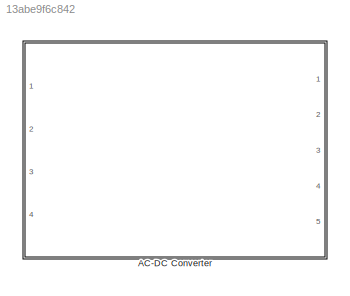
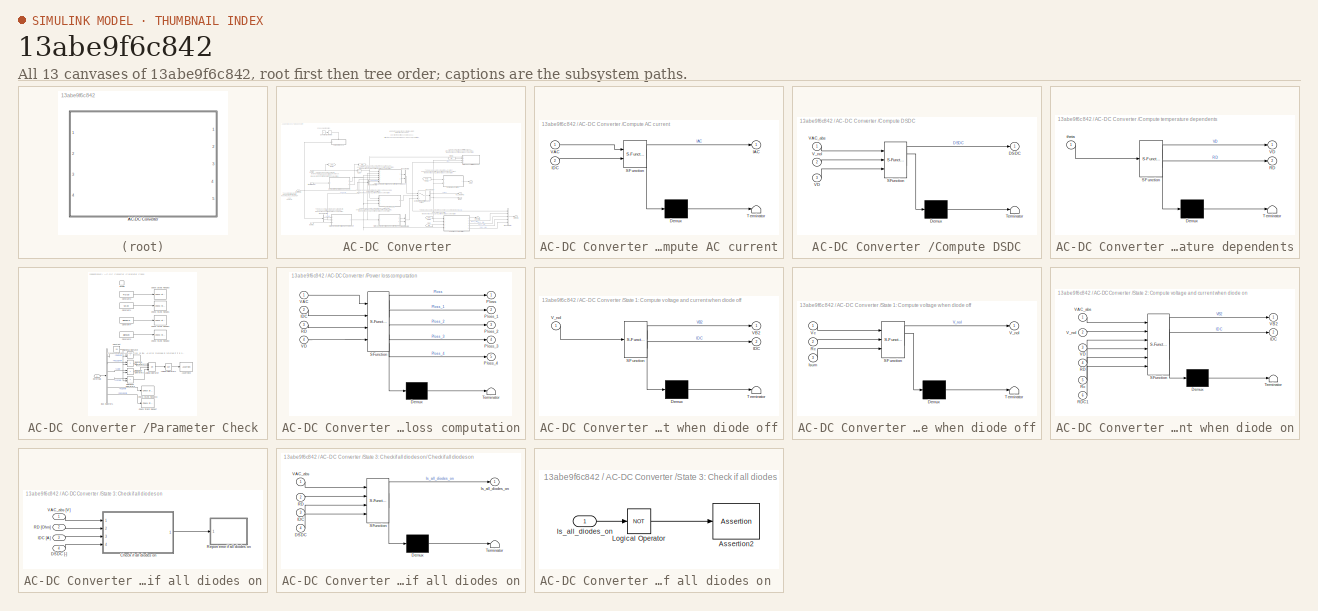
[diagram: thumbnail index - all 13 canvases of the model, root first then tree order]
MODEL slx_13abe9f6c842
KIND library
CONFIG AbsTol = auto
CONFIG FixedStep = auto
CONFIG MaxStep = auto
CONFIG MinStep = auto
CONFIG RelTol = 1e-3
CONFIG SampleTimeConstraint = Unconstrained
CONFIG Solver = ode45
CONFIG SolverMode = Auto
CONFIG SolverName = ode45
CONFIG StartTime = 0.0
CONFIG StopTime = 10.0
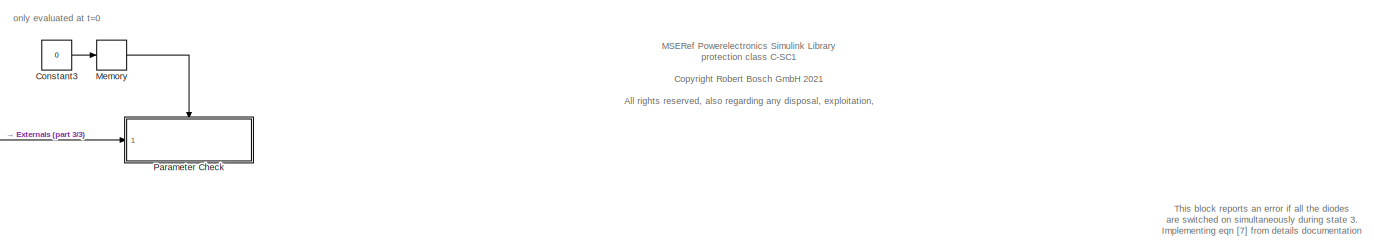
[diagram: AC-DC Converter  - part 1/3, top center region]
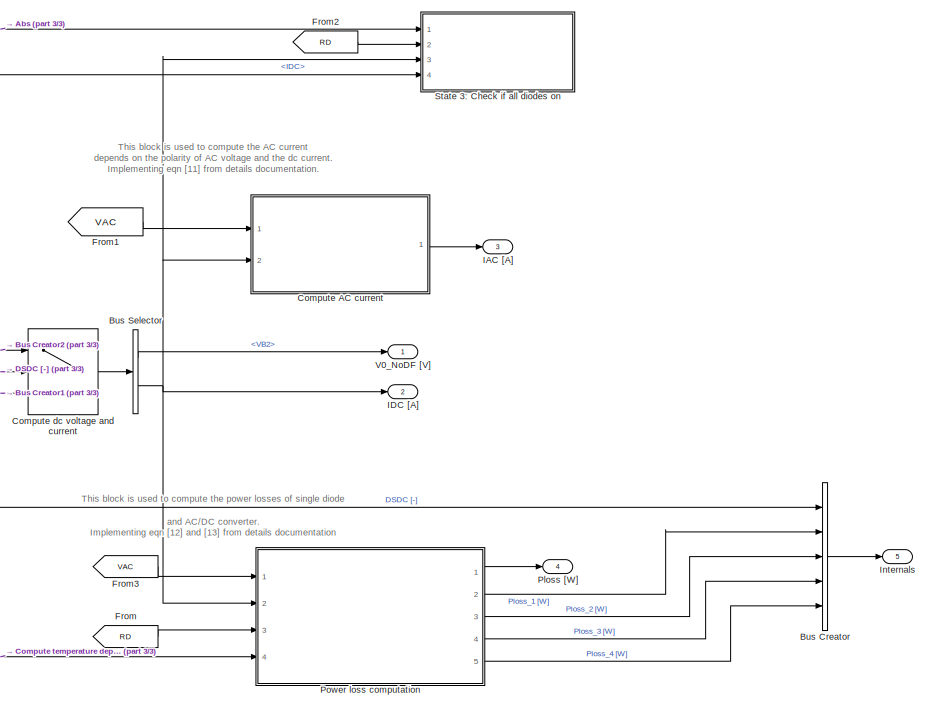
[diagram: AC-DC Converter  - part 2/3, middle right region]
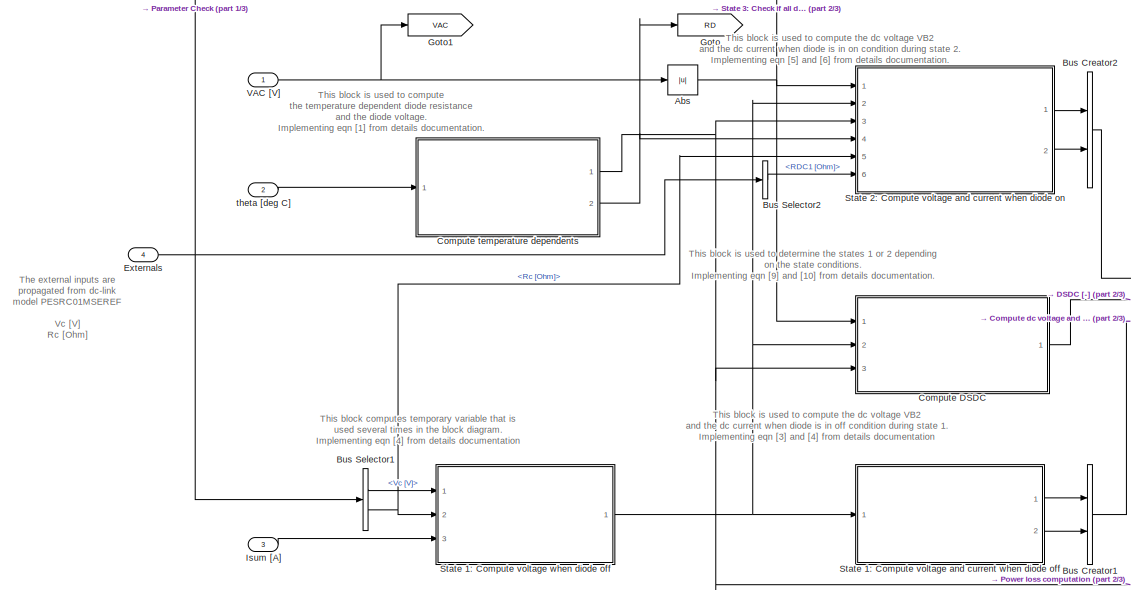
[diagram: AC-DC Converter  - part 3/3, middle left region]
BLOCK [SubSystem] AC-DC Converter 
  AttributesFormatString = <%<Tag>>
  Ports = [4, 5]
  RequestExecContextInheritance = off
  Tag = PEACDC01MSEREF
BLOCK [Abs] AC-DC Converter /Abs
  SaturateOnIntegerOverflow = off
BLOCK [BusCreator] AC-DC Converter /Bus Creator
  DisplayOption = bar
  Inputs = 5
  Ports = [5, 1]
BLOCK [BusCreator] AC-DC Converter /Bus Creator1
  DisplayOption = bar
  Inputs = 2
  Ports = [2, 1]
BLOCK [BusCreator] AC-DC Converter /Bus Creator2
  DisplayOption = bar
  Inputs = 2
  Ports = [2, 1]
BLOCK [BusSelector] AC-DC Converter /Bus Selector
  OutputSignals = VB2,IDC
  Ports = [1, 2]
BLOCK [BusSelector] AC-DC Converter /Bus Selector1
  OutputSignals = Vc [V],Rc [Ohm]
  Ports = [1, 2]
BLOCK [BusSelector] AC-DC Converter /Bus Selector2
  OutputSignals = RDC1 [Ohm]
  Ports = [1, 1]
BLOCK [SubSystem] AC-DC Converter /Compute AC current
  ErrorFcn = Stateflow.Translate.translate
  PermitHierarchicalResolution = ExplicitOnly
  Ports = [2, 1]
  RequestExecContextInheritance = off
  SFBlockType = MATLAB Function
  TreatAsAtomicUnit = on
BLOCK [Demux] AC-DC Converter /Compute AC current/ Demux 
  Outputs = 1
  Ports = [1, 1]
BLOCK [S-Function] AC-DC Converter /Compute AC current/ SFunction 
  EnableBusSupport = off
  FunctionName = sf_sfun
  PortCounts = [2 2]
  Ports = [2, 2]
  Tag = Stateflow S-Function PEACDC01MSEREF 1
BLOCK [Terminator] AC-DC Converter /Compute AC current/ Terminator 
BLOCK [Outport] AC-DC Converter /Compute AC current/IAC
  IconDisplay = Port number
BLOCK [Inport] AC-DC Converter /Compute AC current/IDC
  IconDisplay = Port number
  Port = 2
BLOCK [Inport] AC-DC Converter /Compute AC current/VAC
  IconDisplay = Port number
BLOCK [SubSystem] AC-DC Converter /Compute DSDC
  ErrorFcn = Stateflow.Translate.translate
  PermitHierarchicalResolution = ExplicitOnly
  Ports = [3, 1]
  RequestExecContextInheritance = off
  SFBlockType = MATLAB Function
  TreatAsAtomicUnit = on
BLOCK [Demux] AC-DC Converter /Compute DSDC/ Demux 
  Outputs = 1
  Ports = [1, 1]
BLOCK [S-Function] AC-DC Converter /Compute DSDC/ SFunction 
  EnableBusSupport = off
  FunctionName = sf_sfun
  PortCounts = [3 2]
  Ports = [3, 2]
  Tag = Stateflow S-Function PEACDC01MSEREF 2
BLOCK [Terminator] AC-DC Converter /Compute DSDC/ Terminator 
BLOCK [Outport] AC-DC Converter /Compute DSDC/DSDC
  IconDisplay = Port number
BLOCK [Inport] AC-DC Converter /Compute DSDC/VAC_abs
  IconDisplay = Port number
BLOCK [Inport] AC-DC Converter /Compute DSDC/VD
  IconDisplay = Port number
  Port = 3
BLOCK [Inport] AC-DC Converter /Compute DSDC/V_noI
  IconDisplay = Port number
  Port = 2
BLOCK [Switch] AC-DC Converter /Compute dc voltage and current
  Criteria = u2 > Threshold
  InputSameDT = off
  SaturateOnIntegerOverflow = off
  Threshold = 0.5
BLOCK [SubSystem] AC-DC Converter /Compute temperature dependents
  ErrorFcn = Stateflow.Translate.translate
  PermitHierarchicalResolution = ExplicitOnly
  Ports = [1, 2]
  RequestExecContextInheritance = off
  SFBlockType = MATLAB Function
  TreatAsAtomicUnit = on
BLOCK [Demux] AC-DC Converter /Compute temperature dependents/ Demux 
  Outputs = 1
  Ports = [1, 1]
BLOCK [S-Function] AC-DC Converter /Compute temperature dependents/ SFunction 
  EnableBusSupport = off
  FunctionName = sf_sfun
  Parameters = RD20,VD20,alphaRD,alphaVD
  PortCounts = [1 3]
  Ports = [1, 3]
  Tag = Stateflow S-Function PEACDC01MSEREF 4
BLOCK [Terminator] AC-DC Converter /Compute temperature dependents/ Terminator 
BLOCK [Outport] AC-DC Converter /Compute temperature dependents/RD
  IconDisplay = Port number
  Port = 2
BLOCK [Outport] AC-DC Converter /Compute temperature dependents/VD
  IconDisplay = Port number
BLOCK [Inport] AC-DC Converter /Compute temperature dependents/theta
  IconDisplay = Port number
BLOCK [Constant] AC-DC Converter /Constant3
  Value = 0
BLOCK [Inport] AC-DC Converter /Externals
  IconDisplay = Port number
  Port = 4
BLOCK [From] AC-DC Converter /From
  GotoTag = RD
BLOCK [From] AC-DC Converter /From1
  GotoTag = VAC
BLOCK [From] AC-DC Converter /From2
  GotoTag = RD
BLOCK [From] AC-DC Converter /From3
  GotoTag = VAC
BLOCK [Goto] AC-DC Converter /Goto
  GotoTag = RD
BLOCK [Goto] AC-DC Converter /Goto1
  GotoTag = VAC
BLOCK [Outport] AC-DC Converter /IAC [A]
  IconDisplay = Port number
  Port = 3
BLOCK [Outport] AC-DC Converter /IDC [A]
  IconDisplay = Port number
  Port = 2
BLOCK [Outport] AC-DC Converter /Internals
  IconDisplay = Port number
  Port = 5
BLOCK [Inport] AC-DC Converter /Isum [A]
  IconDisplay = Port number
  Port = 3
BLOCK [Memory] AC-DC Converter /Memory
  X0 = 1
BLOCK [SubSystem] AC-DC Converter /Parameter Check
  Ports = [1, 0, 1]
  RequestExecContextInheritance = off
  TreatAsAtomicUnit = on
BLOCK [Assertion] AC-DC Converter /Parameter Check/Assertion2
  AssertionFailFcn = errordlg('For proper coupling between ACDC and DC link following variables Rb, RDC2, Lb, LDC2 must be set to zero. It considers only wire harness ohmic resistance effects')
BLOCK [BusSelector] AC-DC Converter /Parameter Check/Bus Selector1
  OutputSignals = Rb [Ohm],RDC2 [Ohm],Lb [H],LDC2 [H],Rc [Ohm],RDC1 [Ohm]
  Ports = [1, 6]
BLOCK [Reference] AC-DC Converter /Parameter Check/Check Static Range1  REF=simulink/Model
Verification/Check 
Static Range
  Description = 0 <= u <= 100
  Ports = [1]
  SourceBlock = simulink/Model\nVerification/Check \nStatic Range
  SourceType = Checks_SRange
  enabled = on
  export = off
  icon = graphic
  max = 100
  max_included = on
  min = 0
  min_included = on
  stopWhenAssertionFail = on
BLOCK [Reference] AC-DC Converter /Parameter Check/Check Static Range13  REF=simulink/Model
Verification/Check 
Static Range
  Description = 0 <= u <= 100
  Ports = [1]
  SourceBlock = simulink/Model\nVerification/Check \nStatic Range
  SourceType = Checks_SRange
  enabled = on
  export = off
  icon = graphic
  max = 100
  max_included = on
  min = 0
  min_included = on
  stopWhenAssertionFail = on
BLOCK [Reference] AC-DC Converter /Parameter Check/Check Static Range2  REF=simulink/Model
Verification/Check 
Static Range
  Description = 0 <= u <= 100
  Ports = [1]
  SourceBlock = simulink/Model\nVerification/Check \nStatic Range
  SourceType = Checks_SRange
  enabled = on
  export = off
  icon = graphic
  max = 100
  max_included = on
  min = 0
  min_included = on
  stopWhenAssertionFail = on
BLOCK [Reference] AC-DC Converter /Parameter Check/Check Static Range3  REF=simulink/Model
Verification/Check 
Static Range
  Description = 0 <= u <= 100
  Ports = [1]
  SourceBlock = simulink/Model\nVerification/Check \nStatic Range
  SourceType = Checks_SRange
  enabled = on
  export = off
  icon = graphic
  max = 100
  max_included = on
  min = 0
  min_included = on
  stopWhenAssertionFail = on
BLOCK [Reference] AC-DC Converter /Parameter Check/Check Static Range4  REF=simulink/Model
Verification/Check 
Static Range
  Description = 0 <= u <= 100
  Ports = [1]
  SourceBlock = simulink/Model\nVerification/Check \nStatic Range
  SourceType = Checks_SRange
  enabled = on
  export = off
  icon = graphic
  max = 100
  max_included = on
  min = 0
  min_included = on
  stopWhenAssertionFail = on
BLOCK [Reference] AC-DC Converter /Parameter Check/Check Static Range7  REF=simulink/Model
Verification/Check 
Static Range
  Description = 0 <= u <= 100
  Ports = [1]
  SourceBlock = simulink/Model\nVerification/Check \nStatic Range
  SourceType = Checks_SRange
  enabled = on
  export = off
  icon = graphic
  max = 100
  max_included = on
  min = 0
  min_included = on
  stopWhenAssertionFail = on
BLOCK [Constant] AC-DC Converter /Parameter Check/Constant
  Value = 0.0
BLOCK [Constant] AC-DC Converter /Parameter Check/Constant1
  Value = VD20
BLOCK [Constant] AC-DC Converter /Parameter Check/Constant2
  Value = alphaVD
BLOCK [Constant] AC-DC Converter /Parameter Check/Constant3
  Value = RD20
BLOCK [Constant] AC-DC Converter /Parameter Check/Constant4
  Value = alphaRD
BLOCK [EnablePort] AC-DC Converter /Parameter Check/Enable
  Ports = []
BLOCK [Inport] AC-DC Converter /Parameter Check/Externals
  IconDisplay = Port number
BLOCK [Logic] AC-DC Converter /Parameter Check/Logical Operator
  AllPortsSameDT = off
  Inputs = 4
  Operator = OR
  OutDataTypeStr = boolean
  Ports = [4, 1]
BLOCK [Logic] AC-DC Converter /Parameter Check/Logical Operator1
  AllPortsSameDT = off
  Operator = NOT
  OutDataTypeStr = boolean
  Ports = [1, 1]
BLOCK [RelationalOperator] AC-DC Converter /Parameter Check/Relational Operator
  InputSameDT = off
  Operator = >
  OutDataTypeStr = boolean
  Ports = [2, 1]
BLOCK [RelationalOperator] AC-DC Converter /Parameter Check/Relational Operator1
  InputSameDT = off
  Operator = >
  OutDataTypeStr = boolean
  Ports = [2, 1]
BLOCK [RelationalOperator] AC-DC Converter /Parameter Check/Relational Operator2
  InputSameDT = off
  Operator = >
  OutDataTypeStr = boolean
  Ports = [2, 1]
BLOCK [RelationalOperator] AC-DC Converter /Parameter Check/Relational Operator3
  InputSameDT = off
  Operator = >
  OutDataTypeStr = boolean
  Ports = [2, 1]
BLOCK [Outport] AC-DC Converter /Ploss [W]
  IconDisplay = Port number
  Port = 4
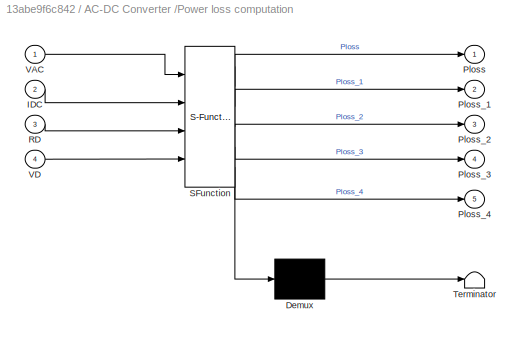
BLOCK [SubSystem] AC-DC Converter /Power loss computation
  ErrorFcn = Stateflow.Translate.translate
  PermitHierarchicalResolution = ExplicitOnly
  Ports = [4, 5]
  RequestExecContextInheritance = off
  SFBlockType = MATLAB Function
  TreatAsAtomicUnit = on
BLOCK [Demux] AC-DC Converter /Power loss computation/ Demux 
  Outputs = 1
  Ports = [1, 1]
BLOCK [S-Function] AC-DC Converter /Power loss computation/ SFunction 
  EnableBusSupport = off
  FunctionName = sf_sfun
  PortCounts = [4 6]
  Ports = [4, 6]
  Tag = Stateflow S-Function PEACDC01MSEREF 10
BLOCK [Terminator] AC-DC Converter /Power loss computation/ Terminator 
BLOCK [Inport] AC-DC Converter /Power loss computation/IDC
  IconDisplay = Port number
  Port = 2
BLOCK [Outport] AC-DC Converter /Power loss computation/Ploss
  IconDisplay = Port number
BLOCK [Outport] AC-DC Converter /Power loss computation/Ploss_1
  IconDisplay = Port number
  Port = 2
BLOCK [Outport] AC-DC Converter /Power loss computation/Ploss_2
  IconDisplay = Port number
  Port = 3
BLOCK [Outport] AC-DC Converter /Power loss computation/Ploss_3
  IconDisplay = Port number
  Port = 4
BLOCK [Outport] AC-DC Converter /Power loss computation/Ploss_4
  IconDisplay = Port number
  Port = 5
BLOCK [Inport] AC-DC Converter /Power loss computation/RD
  IconDisplay = Port number
  Port = 3
BLOCK [Inport] AC-DC Converter /Power loss computation/VAC
  IconDisplay = Port number
BLOCK [Inport] AC-DC Converter /Power loss computation/VD
  IconDisplay = Port number
  Port = 4
BLOCK [SubSystem] AC-DC Converter /State 1: Compute voltage and current when diode off
  ErrorFcn = Stateflow.Translate.translate
  PermitHierarchicalResolution = ExplicitOnly
  Ports = [1, 2]
  RequestExecContextInheritance = off
  SFBlockType = MATLAB Function
  TreatAsAtomicUnit = on
BLOCK [Demux] AC-DC Converter /State 1: Compute voltage and current when diode off/ Demux 
  Outputs = 1
  Ports = [1, 1]
BLOCK [S-Function] AC-DC Converter /State 1: Compute voltage and current when diode off/ SFunction 
  EnableBusSupport = off
  FunctionName = sf_sfun
  PortCounts = [1 3]
  Ports = [1, 3]
  Tag = Stateflow S-Function PEACDC01MSEREF 11
BLOCK [Terminator] AC-DC Converter /State 1: Compute voltage and current when diode off/ Terminator 
BLOCK [Outport] AC-DC Converter /State 1: Compute voltage and current when diode off/IDC
  IconDisplay = Port number
  Port = 2
BLOCK [Outport] AC-DC Converter /State 1: Compute voltage and current when diode off/VB2
  IconDisplay = Port number
BLOCK [Inport] AC-DC Converter /State 1: Compute voltage and current when diode off/V_noI
  IconDisplay = Port number
BLOCK [SubSystem] AC-DC Converter /State 1: Compute voltage when diode off
  ErrorFcn = Stateflow.Translate.translate
  PermitHierarchicalResolution = ExplicitOnly
  Ports = [3, 1]
  RequestExecContextInheritance = off
  SFBlockType = MATLAB Function
  TreatAsAtomicUnit = on
BLOCK [Demux] AC-DC Converter /State 1: Compute voltage when diode off/ Demux 
  Outputs = 1
  Ports = [1, 1]
BLOCK [S-Function] AC-DC Converter /State 1: Compute voltage when diode off/ SFunction 
  EnableBusSupport = off
  FunctionName = sf_sfun
  PortCounts = [3 2]
  Ports = [3, 2]
  Tag = Stateflow S-Function PEACDC01MSEREF 12
BLOCK [Terminator] AC-DC Converter /State 1: Compute voltage when diode off/ Terminator 
BLOCK [Inport] AC-DC Converter /State 1: Compute voltage when diode off/Isum
  IconDisplay = Port number
  Port = 3
BLOCK [Inport] AC-DC Converter /State 1: Compute voltage when diode off/Rc
  IconDisplay = Port number
  Port = 2
BLOCK [Outport] AC-DC Converter /State 1: Compute voltage when diode off/V_noI
  IconDisplay = Port number
BLOCK [Inport] AC-DC Converter /State 1: Compute voltage when diode off/Vc
  IconDisplay = Port number
BLOCK [SubSystem] AC-DC Converter /State 2: Compute voltage and current when diode on
  ErrorFcn = Stateflow.Translate.translate
  PermitHierarchicalResolution = ExplicitOnly
  Ports = [6, 2]
  RequestExecContextInheritance = off
  SFBlockType = MATLAB Function
  TreatAsAtomicUnit = on
BLOCK [Demux] AC-DC Converter /State 2: Compute voltage and current when diode on/ Demux 
  Outputs = 1
  Ports = [1, 1]
BLOCK [S-Function] AC-DC Converter /State 2: Compute voltage and current when diode on/ SFunction 
  EnableBusSupport = off
  FunctionName = sf_sfun
  PortCounts = [6 3]
  Ports = [6, 3]
  Tag = Stateflow S-Function PEACDC01MSEREF 13
BLOCK [Terminator] AC-DC Converter /State 2: Compute voltage and current when diode on/ Terminator 
BLOCK [Outport] AC-DC Converter /State 2: Compute voltage and current when diode on/IDC
  IconDisplay = Port number
  Port = 2
BLOCK [Inport] AC-DC Converter /State 2: Compute voltage and current when diode on/RD
  IconDisplay = Port number
  Port = 4
BLOCK [Inport] AC-DC Converter /State 2: Compute voltage and current when diode on/RDC1
  IconDisplay = Port number
  Port = 6
BLOCK [Inport] AC-DC Converter /State 2: Compute voltage and current when diode on/Rc
  IconDisplay = Port number
  Port = 5
BLOCK [Inport] AC-DC Converter /State 2: Compute voltage and current when diode on/VAC_abs
  IconDisplay = Port number
BLOCK [Outport] AC-DC Converter /State 2: Compute voltage and current when diode on/VB2
  IconDisplay = Port number
BLOCK [Inport] AC-DC Converter /State 2: Compute voltage and current when diode on/VD
  IconDisplay = Port number
  Port = 3
BLOCK [Inport] AC-DC Converter /State 2: Compute voltage and current when diode on/V_noI
  IconDisplay = Port number
  Port = 2
BLOCK [SubSystem] AC-DC Converter /State 3: Check if all diodes on
  Ports = [4]
  RequestExecContextInheritance = off
BLOCK [SubSystem] AC-DC Converter /State 3: Check if all diodes on/ Check if all diodes on
  ErrorFcn = Stateflow.Translate.translate
  PermitHierarchicalResolution = ExplicitOnly
  Ports = [4, 1]
  RequestExecContextInheritance = off
  SFBlockType = MATLAB Function
  TreatAsAtomicUnit = on
BLOCK [Demux] AC-DC Converter /State 3: Check if all diodes on/ Check if all diodes on/ Demux 
  Outputs = 1
  Ports = [1, 1]
BLOCK [S-Function] AC-DC Converter /State 3: Check if all diodes on/ Check if all diodes on/ SFunction 
  EnableBusSupport = off
  FunctionName = sf_sfun
  PortCounts = [4 2]
  Ports = [4, 2]
  Tag = Stateflow S-Function PEACDC01MSEREF 14
BLOCK [Terminator] AC-DC Converter /State 3: Check if all diodes on/ Check if all diodes on/ Terminator 
BLOCK [Inport] AC-DC Converter /State 3: Check if all diodes on/ Check if all diodes on/DSDC
  IconDisplay = Port number
  Port = 4
BLOCK [Inport] AC-DC Converter /State 3: Check if all diodes on/ Check if all diodes on/IDC
  IconDisplay = Port number
  Port = 3
BLOCK [Outport] AC-DC Converter /State 3: Check if all diodes on/ Check if all diodes on/Is_all_diodes_on
  IconDisplay = Port number
BLOCK [Inport] AC-DC Converter /State 3: Check if all diodes on/ Check if all diodes on/RD
  IconDisplay = Port number
  Port = 2
BLOCK [Inport] AC-DC Converter /State 3: Check if all diodes on/ Check if all diodes on/VAC_abs
  IconDisplay = Port number
BLOCK [Inport] AC-DC Converter /State 3: Check if all diodes on/DSDC [-]
  IconDisplay = Port number
  Port = 4
BLOCK [Inport] AC-DC Converter /State 3: Check if all diodes on/IDC [A]
  IconDisplay = Port number
  Port = 3
BLOCK [Inport] AC-DC Converter /State 3: Check if all diodes on/RD [Ohm]
  IconDisplay = Port number
  Port = 2
BLOCK [SubSystem] AC-DC Converter /State 3: Check if all diodes on/Report error if all diodes on 
  Ports = [1]
  RequestExecContextInheritance = off
BLOCK [Assertion] AC-DC Converter /State 3: Check if all diodes on/Report error if all diodes on /Assertion2
  AssertionFailFcn = errordlg('All diodes are switched on simultaneously. Either Isum current is too high or Vc voltage is too low.')
BLOCK [Inport] AC-DC Converter /State 3: Check if all diodes on/Report error if all diodes on /Is_all_diodes_on
  IconDisplay = Port number
BLOCK [Logic] AC-DC Converter /State 3: Check if all diodes on/Report error if all diodes on /Logical Operator
  AllPortsSameDT = off
  Operator = NOT
  OutDataTypeStr = boolean
  Ports = [1, 1]
BLOCK [Inport] AC-DC Converter /State 3: Check if all diodes on/VAC_abs [V]
  IconDisplay = Port number
BLOCK [Outport] AC-DC Converter /V0_NoDF [V]
  IconDisplay = Port number
BLOCK [Inport] AC-DC Converter /VAC [V]
  IconDisplay = Port number
BLOCK [Inport] AC-DC Converter /theta [deg C]
  IconDisplay = Port number
  Port = 2
ANNOTATION AC-DC Converter : This block computes temporary variable that is used several times in the block diagram. Implementing eqn [4] from details documentation
ANNOTATION AC-DC Converter : This block reports an error if all the diodes are switched on simultaneously during state 3. Implementing eqn [7] from details documentation
ANNOTATION AC-DC Converter : MSERef Powerelectronics Simulink Library protection class C-SC1 <copyright redacted>
ANNOTATION AC-DC Converter : The external inputs are propagated from dc-link model PESRC01MSEREF Vc [V] Rc [Ohm] Rb [Ohm] RDC1 [Ohm] RDC2 [Ohm] Lb [H] LDC2 [H]
ANNOTATION AC-DC Converter : This block is used to compute the temperature dependent diode resistance and the diode voltage. Implementing eqn [1] from details documentation.
ANNOTATION AC-DC Converter : This block is used to compute the AC current depends on the polarity of AC voltage and the dc current. Implementing eqn [11] from details documentation.
ANNOTATION AC-DC Converter : This block is used to compute the dc voltage VB2 and the dc current when diode is in off condition during state 1. Implementing eqn [3] and [4] from details documentation
ANNOTATION AC-DC Converter : This block is used to compute the dc voltage VB2 and the dc current when diode is in on condition during state 2. Implementing eqn [5] and [6] from details documentation.
ANNOTATION AC-DC Converter : This block is used to compute the power losses of single diode and AC/DC converter. Implementing eqn [12] and [13] from details documentation
ANNOTATION AC-DC Converter : This block is used to determine the states 1 or 2 depending on the state conditions. Implementing eqn [9] and [10] from details documentation.
ANNOTATION AC-DC Converter : only evaluated at t=0
ANNOTATION AC-DC Converter /Parameter Check: Propagate Rb,RDC2,Lb,LDC2 from dc link. An error message is returned if it is not equal to zero.
NET AC-DC Converter /Abs:1 -> AC-DC Converter /Compute DSDC:1, AC-DC Converter /State 2: Compute voltage and current when diode on:1, AC-DC Converter /State 3: Check if all diodes on:1
LINE AC-DC Converter /Bus Creator1:1 -> AC-DC Converter /Compute dc voltage and current:3
LINE AC-DC Converter /Bus Creator2:1 -> AC-DC Converter /Compute dc voltage and current:1
LINE AC-DC Converter /Bus Creator:1 -> AC-DC Converter /Internals:1
LINE AC-DC Converter /Bus Selector1:1 -> AC-DC Converter /State 1: Compute voltage when diode off:1
NET AC-DC Converter /Bus Selector1:2 -> AC-DC Converter /State 1: Compute voltage when diode off:2, AC-DC Converter /State 2: Compute voltage and current when diode on:5
LINE AC-DC Converter /Bus Selector2:1 -> AC-DC Converter /State 2: Compute voltage and current when diode on:6
LINE AC-DC Converter /Bus Selector:1 -> AC-DC Converter /V0_NoDF [V]:1
NET AC-DC Converter /Bus Selector:2 -> AC-DC Converter /Compute AC current:2, AC-DC Converter /IDC [A]:1, AC-DC Converter /Power loss computation:2, AC-DC Converter /State 3: Check if all diodes on:3
LINE AC-DC Converter /Compute AC current:1 -> AC-DC Converter /IAC [A]:1
NET AC-DC Converter /Compute DSDC:1 -> AC-DC Converter /Bus Creator:1, AC-DC Converter /Compute dc voltage and current:2, AC-DC Converter /State 3: Check if all diodes on:4
LINE AC-DC Converter /Compute dc voltage and current:1 -> AC-DC Converter /Bus Selector:1
NET AC-DC Converter /Compute temperature dependents:1 -> AC-DC Converter /Compute DSDC:3, AC-DC Converter /Power loss computation:4, AC-DC Converter /State 2: Compute voltage and current when diode on:3
NET AC-DC Converter /Compute temperature dependents:2 -> AC-DC Converter /Goto:1, AC-DC Converter /State 2: Compute voltage and current when diode on:4
LINE AC-DC Converter /Constant3:1 -> AC-DC Converter /Memory:1
NET AC-DC Converter /Externals:1 -> AC-DC Converter /Bus Selector1:1, AC-DC Converter /Bus Selector2:1, AC-DC Converter /Parameter Check:1
LINE AC-DC Converter /From1:1 -> AC-DC Converter /Compute AC current:1
LINE AC-DC Converter /From2:1 -> AC-DC Converter /State 3: Check if all diodes on:2
LINE AC-DC Converter /From3:1 -> AC-DC Converter /Power loss computation:1
LINE AC-DC Converter /From:1 -> AC-DC Converter /Power loss computation:3
LINE AC-DC Converter /Isum [A]:1 -> AC-DC Converter /State 1: Compute voltage when diode off:3
LINE AC-DC Converter /Memory:1 -> AC-DC Converter /Parameter Check:enable
LINE AC-DC Converter /Parameter Check/Bus Selector1:1 -> AC-DC Converter /Parameter Check/Relational Operator:1
LINE AC-DC Converter /Parameter Check/Bus Selector1:2 -> AC-DC Converter /Parameter Check/Relational Operator1:1
LINE AC-DC Converter /Parameter Check/Bus Selector1:3 -> AC-DC Converter /Parameter Check/Relational Operator2:1
LINE AC-DC Converter /Parameter Check/Bus Selector1:4 -> AC-DC Converter /Parameter Check/Relational Operator3:1
LINE AC-DC Converter /Parameter Check/Bus Selector1:5 -> AC-DC Converter /Parameter Check/Check Static Range13:1
LINE AC-DC Converter /Parameter Check/Bus Selector1:6 -> AC-DC Converter /Parameter Check/Check Static Range7:1
LINE AC-DC Converter /Parameter Check/Constant1:1 -> AC-DC Converter /Parameter Check/Check Static Range1:1
LINE AC-DC Converter /Parameter Check/Constant2:1 -> AC-DC Converter /Parameter Check/Check Static Range2:1
LINE AC-DC Converter /Parameter Check/Constant3:1 -> AC-DC Converter /Parameter Check/Check Static Range3:1
LINE AC-DC Converter /Parameter Check/Constant4:1 -> AC-DC Converter /Parameter Check/Check Static Range4:1
NET AC-DC Converter /Parameter Check/Constant:1 -> AC-DC Converter /Parameter Check/Relational Operator1:2, AC-DC Converter /Parameter Check/Relational Operator2:2, AC-DC Converter /Parameter Check/Relational Operator3:2, AC-DC Converter /Parameter Check/Relational Operator:2
LINE AC-DC Converter /Parameter Check/Externals:1 -> AC-DC Converter /Parameter Check/Bus Selector1:1
LINE AC-DC Converter /Parameter Check/Logical Operator1:1 -> AC-DC Converter /Parameter Check/Assertion2:1
LINE AC-DC Converter /Parameter Check/Logical Operator:1 -> AC-DC Converter /Parameter Check/Logical Operator1:1
LINE AC-DC Converter /Parameter Check/Relational Operator1:1 -> AC-DC Converter /Parameter Check/Logical Operator:2
LINE AC-DC Converter /Parameter Check/Relational Operator2:1 -> AC-DC Converter /Parameter Check/Logical Operator:3
LINE AC-DC Converter /Parameter Check/Relational Operator3:1 -> AC-DC Converter /Parameter Check/Logical Operator:4
LINE AC-DC Converter /Parameter Check/Relational Operator:1 -> AC-DC Converter /Parameter Check/Logical Operator:1
LINE AC-DC Converter /Power loss computation:1 -> AC-DC Converter /Ploss [W]:1
LINE AC-DC Converter /Power loss computation:2 -> AC-DC Converter /Bus Creator:2
LINE AC-DC Converter /Power loss computation:3 -> AC-DC Converter /Bus Creator:3
LINE AC-DC Converter /Power loss computation:4 -> AC-DC Converter /Bus Creator:4
LINE AC-DC Converter /Power loss computation:5 -> AC-DC Converter /Bus Creator:5
LINE AC-DC Converter /State 1: Compute voltage and current when diode off:1 -> AC-DC Converter /Bus Creator1:1
LINE AC-DC Converter /State 1: Compute voltage and current when diode off:2 -> AC-DC Converter /Bus Creator1:2
NET AC-DC Converter /State 1: Compute voltage when diode off:1 -> AC-DC Converter /Compute DSDC:2, AC-DC Converter /State 1: Compute voltage and current when diode off:1, AC-DC Converter /State 2: Compute voltage and current when diode on:2
LINE AC-DC Converter /State 2: Compute voltage and current when diode on:1 -> AC-DC Converter /Bus Creator2:1
LINE AC-DC Converter /State 2: Compute voltage and current when diode on:2 -> AC-DC Converter /Bus Creator2:2
LINE AC-DC Converter /State 3: Check if all diodes on/ Check if all diodes on:1 -> AC-DC Converter /State 3: Check if all diodes on/Report error if all diodes on :1
LINE AC-DC Converter /State 3: Check if all diodes on/DSDC [-]:1 -> AC-DC Converter /State 3: Check if all diodes on/ Check if all diodes on:4
LINE AC-DC Converter /State 3: Check if all diodes on/IDC [A]:1 -> AC-DC Converter /State 3: Check if all diodes on/ Check if all diodes on:3
LINE AC-DC Converter /State 3: Check if all diodes on/RD [Ohm]:1 -> AC-DC Converter /State 3: Check if all diodes on/ Check if all diodes on:2
LINE AC-DC Converter /State 3: Check if all diodes on/Report error if all diodes on /Is_all_diodes_on:1 -> AC-DC Converter /State 3: Check if all diodes on/Report error if all diodes on /Logical Operator:1
LINE AC-DC Converter /State 3: Check if all diodes on/Report error if all diodes on /Logical Operator:1 -> AC-DC Converter /State 3: Check if all diodes on/Report error if all diodes on /Assertion2:1
LINE AC-DC Converter /State 3: Check if all diodes on/VAC_abs [V]:1 -> AC-DC Converter /State 3: Check if all diodes on/ Check if all diodes on:1
NET AC-DC Converter /VAC [V]:1 -> AC-DC Converter /Abs:1, AC-DC Converter /Goto1:1
LINE AC-DC Converter /theta [deg C]:1 -> AC-DC Converter /Compute temperature dependents:1
note: NET lines group one-source signal fan-out (src -> all destinations, sorted); 1:1 wires keep LINE
CHART AC-DC Converter /Compute AC current states=1 transitions=1
  STATE_LABEL 'eML_blk_kernel()'
  STATE_LABEL 'SCRIPT:\nfunction IAC  = fcn(VAC,IDC)\n%  This function is used to compute the AC current \n%  depends on the polarity of AC voltage and the dc current.\n%\n%  MSERef Powerelectronics Simulink Library \n%  protection class C-SC1\n%\n%  <copyright redacted>\n%\n%  All rights reserved, also regarding any disposal, exploitation,\n%  reproduction, editing, distribution, as well as in the event of\n%  ...<+162ch>'
CHART AC-DC Converter /Compute DSDC states=1 transitions=1
  STATE_LABEL 'eML_blk_kernel()'
  STATE_LABEL 'SCRIPT:\nfunction DSDC  = fcn(VAC_abs,V_noI,VD)\n% This function is used to determine the state 1 or 2 depending\n% on the state conditions.\n%\n%  MSERef Powerelectronics Simulink Library \n%  protection class C-SC1\n%\n%  <copyright redacted>\n%\n%  All rights reserved, also regarding any disposal, exploitation,\n%  reproduction, editing, distribution, as well as in the event of\n%  applications...<+219ch>'
CHART AC-DC Converter /Compute temperature dependents states=1 transitions=1
  STATE_LABEL 'eML_blk_kernel()'
  STATE_LABEL 'SCRIPT:\nfunction [VD, RD] = fcn(theta, VD20, RD20, alphaVD, alphaRD)\n% This function is used to compute the temperature dependent diode\n% resistance and voltage\n%\n%  MSERef Powerelectronics Simulink Library \n%  protection class C-SC1\n%\n%  <copyright redacted>\n%\n%  All rights reserved, also regarding any disposal, exploitation,\n%  reproduction, editing, distribution, as well as in the e...<+294ch>'
CHART AC-DC Converter /Power loss computation states=1 transitions=1
  STATE_LABEL 'eML_blk_kernel()'
  STATE_LABEL 'SCRIPT:\nfunction [Ploss,Ploss_1,Ploss_2,Ploss_3,Ploss_4] = fcn(VAC,IDC, RD, VD)\n%  This function is used to compute the power losses of single diode\n%  and AC/DC converter.\n%\n%  MSERef Powerelectronics Simulink Library \n%  protection class C-SC1\n%\n%  <copyright redacted>\n%\n%  All rights reserved, also regarding any disposal, exploitation,\n%  reproduction, editing, distribution, as well...<+469ch>'
CHART AC-DC Converter /State 1: Compute voltage and current when diode off states=1 transitions=1
  STATE_LABEL 'eML_blk_kernel()'
  STATE_LABEL 'SCRIPT:\nfunction [VB2,IDC]  = fcn(V_noI)\n% This function is used to compute dc voltage VB2\n% and the dc current when diode is in off condition during state 1.\n%\n%  MSERef Powerelectronics Simulink Library \n%  protection class C-SC1\n%\n%  <copyright redacted>\n%\n%  All rights reserved, also regarding any disposal, exploitation,\n%  reproduction, editing, distribution, as well as in the eve...<+184ch>'
CHART AC-DC Converter /State 1: Compute voltage when diode off states=1 transitions=1
  STATE_LABEL 'eML_blk_kernel()'
  STATE_LABEL 'SCRIPT:\nfunction V_noI  = fcn(Vc,Rc,Isum)\n%  This function  computes temporary variable that is \n%  used several times in the block diagram.\n%\n%  MSERef Powerelectronics Simulink Library \n%  protection class C-SC1\n%\n%  <copyright redacted>\n%\n%  All rights reserved, also regarding any disposal, exploitation,\n%  reproduction, editing, distribution, as well as in the event of\n%  applicati...<+149ch>'
CHART AC-DC Converter /State 2: Compute voltage and current when diode on states=1 transitions=1
  STATE_LABEL 'eML_blk_kernel()'
  STATE_LABEL 'SCRIPT:\nfunction [VB2,IDC]  = fcn(VAC_abs,V_noI,VD,RD,Rc,RDC1)\n% This function is used to compute dc voltage VB2\n% and the dc current when diode is in on condition during state 2.\n%\n%  MSERef Powerelectronics Simulink Library \n%  protection class C-SC1\n%\n%  <copyright redacted>\n%\n%  All rights reserved, also regarding any disposal, exploitation,\n%  reproduction, editing, distribution, ...<+268ch>'
CHART AC-DC Converter /State 3: Check if all diodes on/ Check if all diodes on states=1 transitions=1
  STATE_LABEL 'eML_blk_kernel()'
  STATE_LABEL 'SCRIPT:\nfunction Is_all_diodes_on  = fcn(VAC_abs,RD,IDC,DSDC)\n%  This function reports an error if all the diodes \n%  are switched on simultaneously during state 3.\n%\n%  MSERef Powerelectronics Simulink Library \n%  protection class C-SC1\n%\n%  <copyright redacted>\n%\n%  All rights reserved, also regarding any disposal, exploitation,\n%  reproduction, editing, distribution, as well as in t...<+254ch>'
